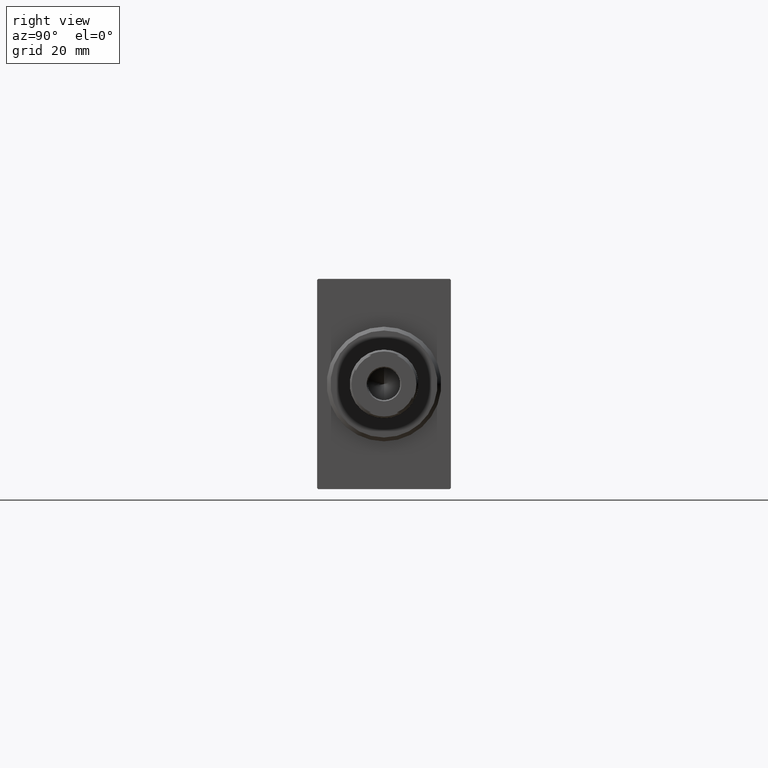
[diagram: clean part render]
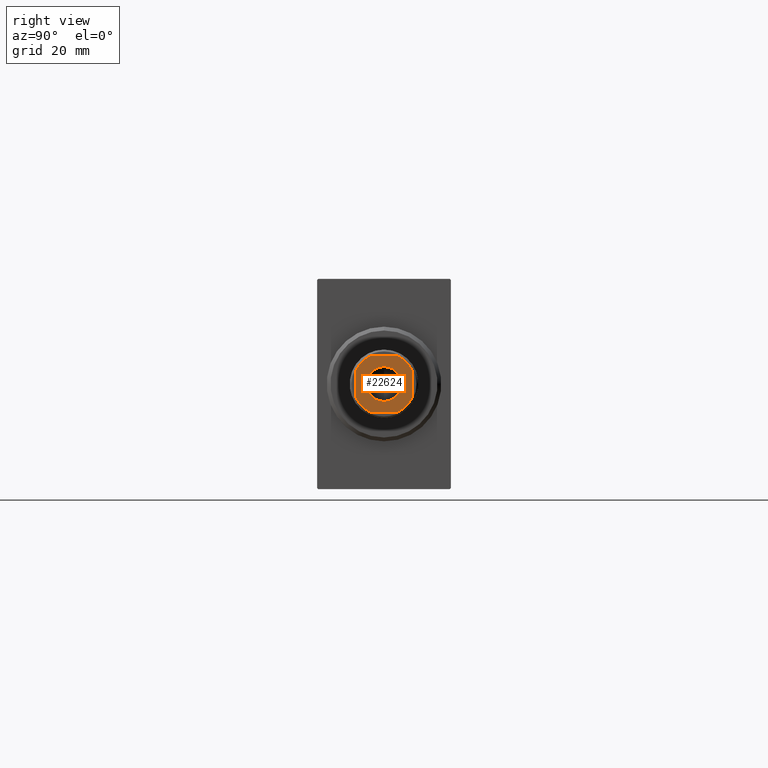
[diagram: same view with one face highlighted and labeled with its STEP entity id]
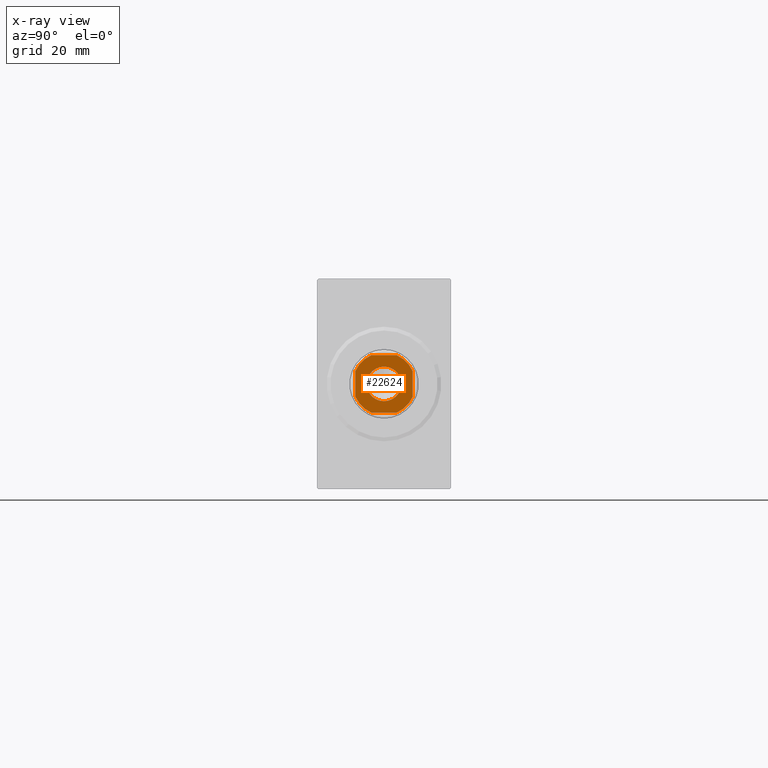
[diagram: x-ray of the same camera — body ghosted, the highlighted face saturated]
A machine part, right view. The second image highlights one B-rep face of the part: STEP entity #22624.
The next image is the same camera in x-ray: the body ghosted, the highlighted face saturated — about 0% of this face is hidden behind the body in this view.
In plain terms, the highlighted planar face has unit normal (1, 0, -0).
Its self-contained STEP definition (entity closure, byte-faithful):
#76 = CIRCLE ( 'NONE', #4969, 8.200000000000054357 ) ;
#786 = ORIENTED_EDGE ( 'NONE', *, *, #28971, .T. ) ;
#1183 = VERTEX_POINT ( 'NONE', #24244 ) ;
#1626 = VECTOR ( 'NONE', #9187, 1000.000000000000000 ) ;
#2311 = DIRECTION ( 'NONE',  ( -0.000000000000000000, 0.000000000000000000, 1.000000000000000000 ) ) ;
#2524 = VERTEX_POINT ( 'NONE', #36842 ) ;
#3004 = AXIS2_PLACEMENT_3D ( 'NONE', #30916, #27645, #40975 ) ;
#3554 = VERTEX_POINT ( 'NONE', #27133 ) ;
#4409 = EDGE_CURVE ( 'NONE', #28439, #32014, #35229, .T. ) ;
#4928 = DIRECTION ( 'NONE',  ( 0.000000000000000000, -0.000000000000000000, -1.000000000000000000 ) ) ;
#4969 = AXIS2_PLACEMENT_3D ( 'NONE', #10612, #23709, #39894 ) ;
#5298 = CARTESIAN_POINT ( 'NONE',  ( -7.499999999999999112, -7.499999999999998224, 175.0000000000000284 ) ) ;
#7274 = CARTESIAN_POINT ( 'NONE',  ( 3.315116890850202225, -7.499999999999996447, 175.0000000000000284 ) ) ;
#8084 = CARTESIAN_POINT ( 'NONE',  ( 7.499999999999998224, 3.315116890850205777, 175.0000000000000284 ) ) ;
#8768 = CARTESIAN_POINT ( 'NONE',  ( 7.499999999999997335, 7.500000000000000888, 175.0000000000000284 ) ) ;
#9187 = DIRECTION ( 'NONE',  ( -1.156482317317871478E-16, 1.000000000000000000, -0.000000000000000000 ) ) ;
#9282 = VERTEX_POINT ( 'NONE', #8084 ) ;
#9331 = CARTESIAN_POINT ( 'NONE',  ( -7.500000000000001776, 7.500000000000001776, 175.0000000000000284 ) ) ;
#10612 = CARTESIAN_POINT ( 'NONE',  ( 0.000000000000000000, 0.000000000000000000, 175.0000000000000284 ) ) ;
#11040 = FACE_BOUND ( 'NONE', #26704, .T. ) ;
#11054 = CARTESIAN_POINT ( 'NONE',  ( 0.000000000000000000, 0.000000000000000000, 175.0000000000000284 ) ) ;
#11267 = DIRECTION ( 'NONE',  ( -0.000000000000000000, 0.000000000000000000, 1.000000000000000000 ) ) ;
#11394 = ORIENTED_EDGE ( 'NONE', *, *, #38721, .T. ) ;
#11958 = AXIS2_PLACEMENT_3D ( 'NONE', #31124, #41168, #18018 ) ;
#12240 = CIRCLE ( 'NONE', #21280, 8.200000000000018829 ) ;
#12657 = EDGE_CURVE ( 'NONE', #1183, #18292, #33891, .T. ) ;
#12661 = DIRECTION ( 'NONE',  ( -0.000000000000000000, 0.000000000000000000, 1.000000000000000000 ) ) ;
#12682 = VERTEX_POINT ( 'NONE', #29383 ) ;
#13154 = DIRECTION ( 'NONE',  ( 1.734723475976807094E-16, -1.000000000000000000, 0.000000000000000000 ) ) ;
#14492 = EDGE_LOOP ( 'NONE', ( #25181, #11394, #35858, #38638, #786, #28208, #41904, #18422 ) ) ;
#14648 = VERTEX_POINT ( 'NONE', #34688 ) ;
#15062 = AXIS2_PLACEMENT_3D ( 'NONE', #23053, #2311, #22627 ) ;
#15240 = DIRECTION ( 'NONE',  ( -1.000000000000000000, 5.782411586589357392E-17, -0.000000000000000000 ) ) ;
#17574 = FACE_OUTER_BOUND ( 'NONE', #14492, .T. ) ;
#17778 = AXIS2_PLACEMENT_3D ( 'NONE', #11054, #4928, #27858 ) ;
#18018 = DIRECTION ( 'NONE',  ( 1.000000000000000000, 0.000000000000000000, 0.000000000000000000 ) ) ;
#18292 = VERTEX_POINT ( 'NONE', #27318 ) ;
#18422 = ORIENTED_EDGE ( 'NONE', *, *, #27194, .T. ) ;
#18555 = CARTESIAN_POINT ( 'NONE',  ( 7.499999999999998224, -3.315116890850200004, 175.0000000000000284 ) ) ;
#19529 = VECTOR ( 'NONE', #15240, 1000.000000000000000 ) ;
#20102 = EDGE_CURVE ( 'NONE', #12682, #1183, #32491, .T. ) ;
#21280 = AXIS2_PLACEMENT_3D ( 'NONE', #41184, #11267, #24361 ) ;
#21836 = CIRCLE ( 'NONE', #3004, 4.549999999999970512 ) ;
#22624 = ADVANCED_FACE ( 'NONE', ( #11040, #17574 ), #34183, .T. ) ;
#22627 = DIRECTION ( 'NONE',  ( 1.000000000000000000, 0.000000000000000000, 0.000000000000000000 ) ) ;
#22770 = ORIENTED_EDGE ( 'NONE', *, *, #28405, .T. ) ;
#23053 = CARTESIAN_POINT ( 'NONE',  ( 0.000000000000000000, 0.000000000000000000, 175.0000000000000284 ) ) ;
#23356 = EDGE_CURVE ( 'NONE', #2524, #28439, #76, .T. ) ;
#23709 = DIRECTION ( 'NONE',  ( -0.000000000000000000, 0.000000000000000000, 1.000000000000000000 ) ) ;
#23884 = AXIS2_PLACEMENT_3D ( 'NONE', #35608, #12661, #35821 ) ;
#24045 = VERTEX_POINT ( 'NONE', #18555 ) ;
#24244 = CARTESIAN_POINT ( 'NONE',  ( -3.315116890850339004, 7.500000000000000888, 175.0000000000000284 ) ) ;
#24361 = DIRECTION ( 'NONE',  ( 1.000000000000000000, 0.000000000000000000, 0.000000000000000000 ) ) ;
#24753 = CIRCLE ( 'NONE', #17778, 4.549999999999970512 ) ;
#25181 = ORIENTED_EDGE ( 'NONE', *, *, #33375, .T. ) ;
#25357 = LINE ( 'NONE', #8768, #1626 ) ;
#26704 = EDGE_LOOP ( 'NONE', ( #30021, #22770 ) ) ;
#27133 = CARTESIAN_POINT ( 'NONE',  ( 4.549999999999970512, 0.000000000000000000, 175.0000000000000284 ) ) ;
#27194 = EDGE_CURVE ( 'NONE', #32014, #24045, #31552, .T. ) ;
#27318 = CARTESIAN_POINT ( 'NONE',  ( -7.500000000000000888, 3.315116890850339448, 175.0000000000000284 ) ) ;
#27645 = DIRECTION ( 'NONE',  ( 0.000000000000000000, -0.000000000000000000, -1.000000000000000000 ) ) ;
#27858 = DIRECTION ( 'NONE',  ( 1.000000000000000000, 0.000000000000000000, 0.000000000000000000 ) ) ;
#28208 = ORIENTED_EDGE ( 'NONE', *, *, #23356, .T. ) ;
#28405 = EDGE_CURVE ( 'NONE', #14648, #3554, #21836, .T. ) ;
#28439 = VERTEX_POINT ( 'NONE', #38349 ) ;
#28971 = EDGE_CURVE ( 'NONE', #18292, #2524, #33018, .T. ) ;
#29383 = CARTESIAN_POINT ( 'NONE',  ( 3.315116890850199116, 7.500000000000000888, 175.0000000000000284 ) ) ;
#30021 = ORIENTED_EDGE ( 'NONE', *, *, #38717, .T. ) ;
#30916 = CARTESIAN_POINT ( 'NONE',  ( 0.000000000000000000, 0.000000000000000000, 175.0000000000000284 ) ) ;
#31124 = CARTESIAN_POINT ( 'NONE',  ( 0.000000000000000000, 0.000000000000000000, 175.0000000000000284 ) ) ;
#31552 = CIRCLE ( 'NONE', #23884, 8.200000000000017053 ) ;
#32014 = VERTEX_POINT ( 'NONE', #7274 ) ;
#32491 = LINE ( 'NONE', #9331, #19529 ) ;
#33018 = LINE ( 'NONE', #43065, #42063 ) ;
#33375 = EDGE_CURVE ( 'NONE', #24045, #9282, #25357, .T. ) ;
#33891 = CIRCLE ( 'NONE', #15062, 8.200000000000075673 ) ;
#34183 = PLANE ( 'NONE',  #11958 ) ;
#34688 = CARTESIAN_POINT ( 'NONE',  ( -4.549999999999970512, 5.572142936120421828E-16, 175.0000000000000284 ) ) ;
#35229 = LINE ( 'NONE', #5298, #41477 ) ;
#35608 = CARTESIAN_POINT ( 'NONE',  ( 0.000000000000000000, 0.000000000000000000, 175.0000000000000284 ) ) ;
#35821 = DIRECTION ( 'NONE',  ( 1.000000000000000000, 0.000000000000000000, 0.000000000000000000 ) ) ;
#35858 = ORIENTED_EDGE ( 'NONE', *, *, #20102, .T. ) ;
#36842 = CARTESIAN_POINT ( 'NONE',  ( -7.499999999999999112, -3.315116890850291931, 175.0000000000000284 ) ) ;
#38349 = CARTESIAN_POINT ( 'NONE',  ( -3.315116890850296372, -7.499999999999998224, 175.0000000000000284 ) ) ;
#38638 = ORIENTED_EDGE ( 'NONE', *, *, #12657, .T. ) ;
#38717 = EDGE_CURVE ( 'NONE', #3554, #14648, #24753, .T. ) ;
#38721 = EDGE_CURVE ( 'NONE', #9282, #12682, #12240, .T. ) ;
#39894 = DIRECTION ( 'NONE',  ( 1.000000000000000000, 0.000000000000000000, 0.000000000000000000 ) ) ;
#40975 = DIRECTION ( 'NONE',  ( 1.000000000000000000, 0.000000000000000000, 0.000000000000000000 ) ) ;
#41168 = DIRECTION ( 'NONE',  ( -0.000000000000000000, 0.000000000000000000, 1.000000000000000000 ) ) ;
#41184 = CARTESIAN_POINT ( 'NONE',  ( 0.000000000000000000, 0.000000000000000000, 175.0000000000000284 ) ) ;
#41477 = VECTOR ( 'NONE', #41977, 1000.000000000000000 ) ;
#41904 = ORIENTED_EDGE ( 'NONE', *, *, #4409, .T. ) ;
#41977 = DIRECTION ( 'NONE',  ( 1.000000000000000000, 0.000000000000000000, 0.000000000000000000 ) ) ;
#42063 = VECTOR ( 'NONE', #13154, 1000.000000000000000 ) ;
#43065 = CARTESIAN_POINT ( 'NONE',  ( -7.500000000000001776, 7.500000000000001776, 175.0000000000000284 ) ) ;